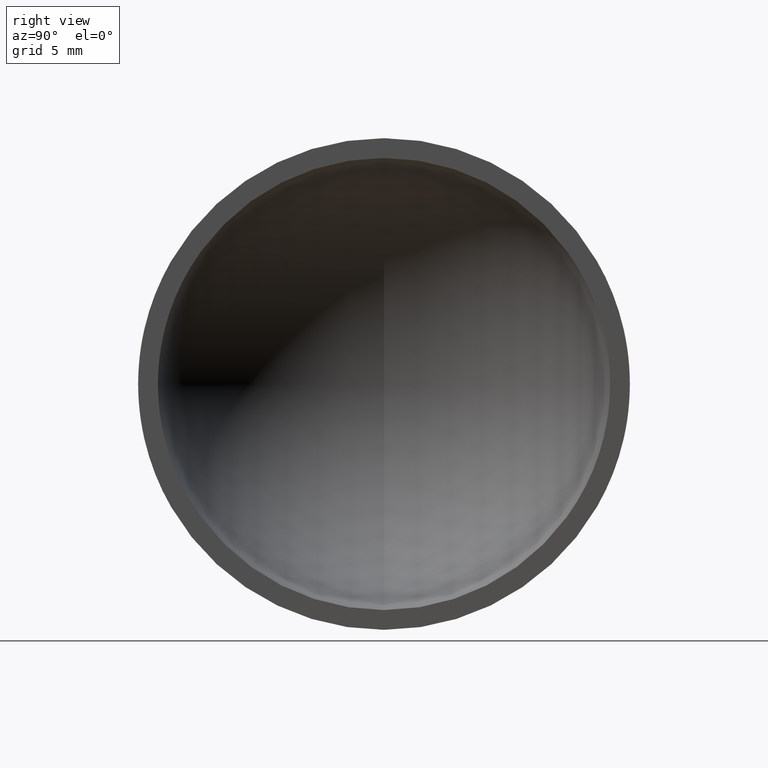
[diagram: clean part render]
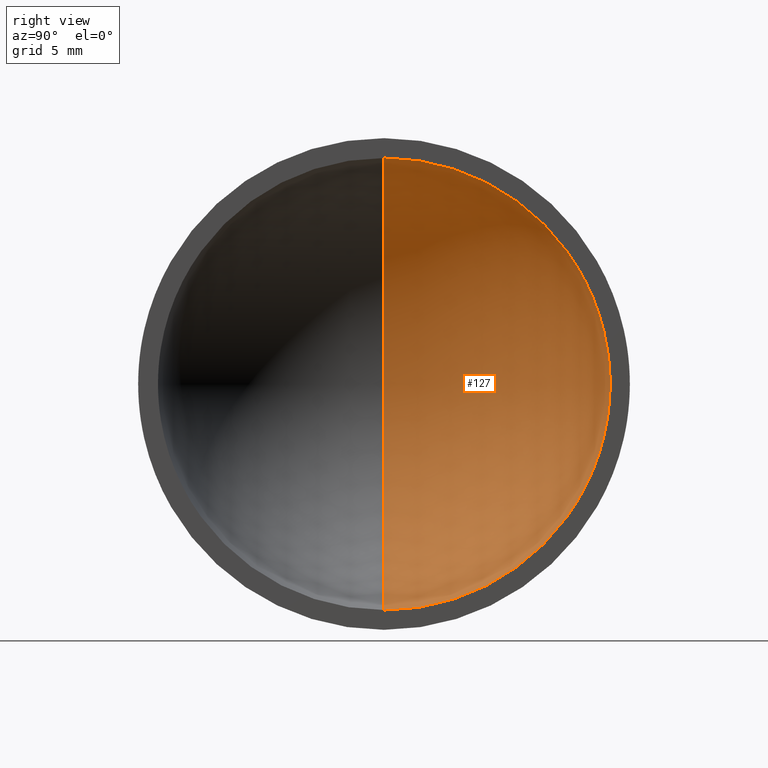
[diagram: same view with one face highlighted and labeled with its STEP entity id]
A machine part, right view. The second image highlights one B-rep face of the part: STEP entity #127.
In plain terms, the highlighted spherical surface has radius 11.5 mm.
Its self-contained STEP definition (entity closure, byte-faithful):
#1 = FACE_OUTER_BOUND ( 'NONE', #132, .T. ) ;
#13 = CIRCLE ( 'NONE', #25, 11.45643923738959900 ) ;
#22 = CIRCLE ( 'NONE', #147, 11.50000000000000000 ) ;
#25 = AXIS2_PLACEMENT_3D ( 'NONE', #160, #83, #105 ) ;
#29 = DIRECTION ( 'NONE',  ( 0.0000000000000000000, 0.0000000000000000000, 1.000000000000000000 ) ) ;
#31 = DIRECTION ( 'NONE',  ( 0.0000000000000000000, -1.000000000000000000, 0.0000000000000000000 ) ) ;
#33 = ORIENTED_EDGE ( 'NONE', *, *, #94, .F. ) ;
#36 = VERTEX_POINT ( 'NONE', #103 ) ;
#42 = ORIENTED_EDGE ( 'NONE', *, *, #45, .T. ) ;
#45 = EDGE_CURVE ( 'NONE', #171, #156, #22, .T. ) ;
#46 = DIRECTION ( 'NONE',  ( 0.0000000000000000000, -1.224646799147353200E-016, -1.000000000000000000 ) ) ;
#48 = ORIENTED_EDGE ( 'NONE', *, *, #120, .T. ) ;
#68 = CARTESIAN_POINT ( 'NONE',  ( -0.9999999999999967800, -1.403009164169531900E-015, -11.45643923738959900 ) ) ;
#71 = CARTESIAN_POINT ( 'NONE',  ( 0.0000000000000000000, 0.0000000000000000000, 0.0000000000000000000 ) ) ;
#75 = AXIS2_PLACEMENT_3D ( 'NONE', #93, #31, #29 ) ;
#77 = DIRECTION ( 'NONE',  ( 0.0000000000000000000, 1.000000000000000000, 0.0000000000000000000 ) ) ;
#83 = DIRECTION ( 'NONE',  ( 1.000000000000000000, -0.0000000000000000000, -0.0000000000000000000 ) ) ;
#93 = CARTESIAN_POINT ( 'NONE',  ( 0.0000000000000000000, 0.0000000000000000000, 0.0000000000000000000 ) ) ;
#94 = EDGE_CURVE ( 'NONE', #171, #36, #157, .T. ) ;
#103 = CARTESIAN_POINT ( 'NONE',  ( -0.9999999999999967800, 0.0000000000000000000, 11.45643923738959900 ) ) ;
#105 = DIRECTION ( 'NONE',  ( 0.0000000000000000000, 0.0000000000000000000, -1.000000000000000000 ) ) ;
#106 = DIRECTION ( 'NONE',  ( 0.0000000000000000000, -1.000000000000000000, 1.224646799147353200E-016 ) ) ;
#120 = EDGE_CURVE ( 'NONE', #156, #36, #13, .T. ) ;
#122 = CARTESIAN_POINT ( 'NONE',  ( 0.0000000000000000000, 0.0000000000000000000, 0.0000000000000000000 ) ) ;
#127 = ADVANCED_FACE ( 'NONE', ( #1 ), #143, .F. ) ;
#132 = EDGE_LOOP ( 'NONE', ( #33, #42, #48 ) ) ;
#133 = CARTESIAN_POINT ( 'NONE',  ( -11.50000000000000000, 0.0000000000000000000, 7.041719095097280900E-016 ) ) ;
#135 = DIRECTION ( 'NONE',  ( 0.0000000000000000000, 0.0000000000000000000, 1.000000000000000000 ) ) ;
#139 = AXIS2_PLACEMENT_3D ( 'NONE', #122, #77, #135 ) ;
#143 = SPHERICAL_SURFACE ( 'NONE', #75, 11.50000000000000000 ) ;
#147 = AXIS2_PLACEMENT_3D ( 'NONE', #71, #106, #46 ) ;
#156 = VERTEX_POINT ( 'NONE', #68 ) ;
#157 = CIRCLE ( 'NONE', #139, 11.50000000000000000 ) ;
#160 = CARTESIAN_POINT ( 'NONE',  ( -0.9999999999999967800, 0.0000000000000000000, 0.0000000000000000000 ) ) ;
#171 = VERTEX_POINT ( 'NONE', #133 ) ;